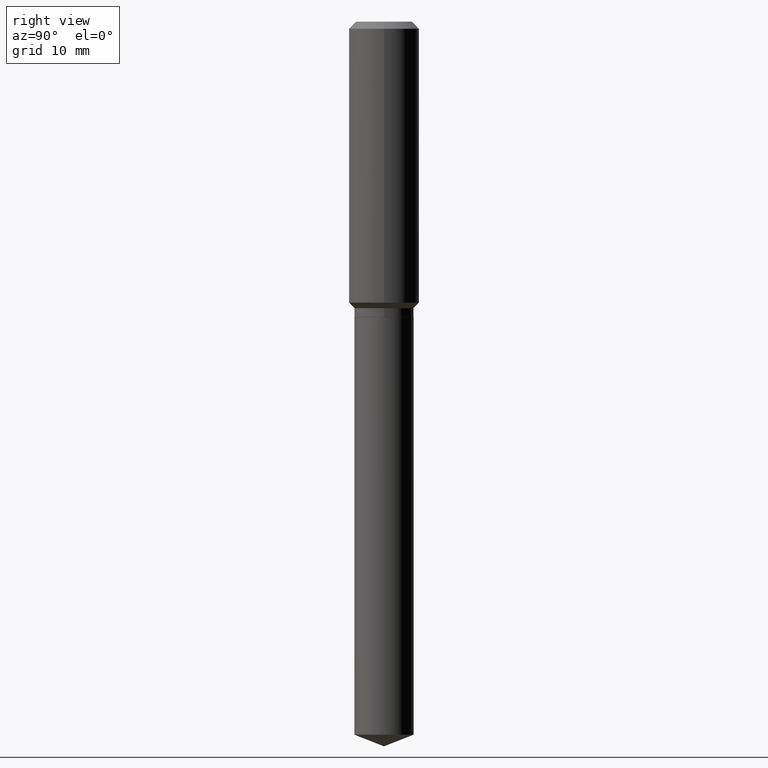
[diagram: clean part render]
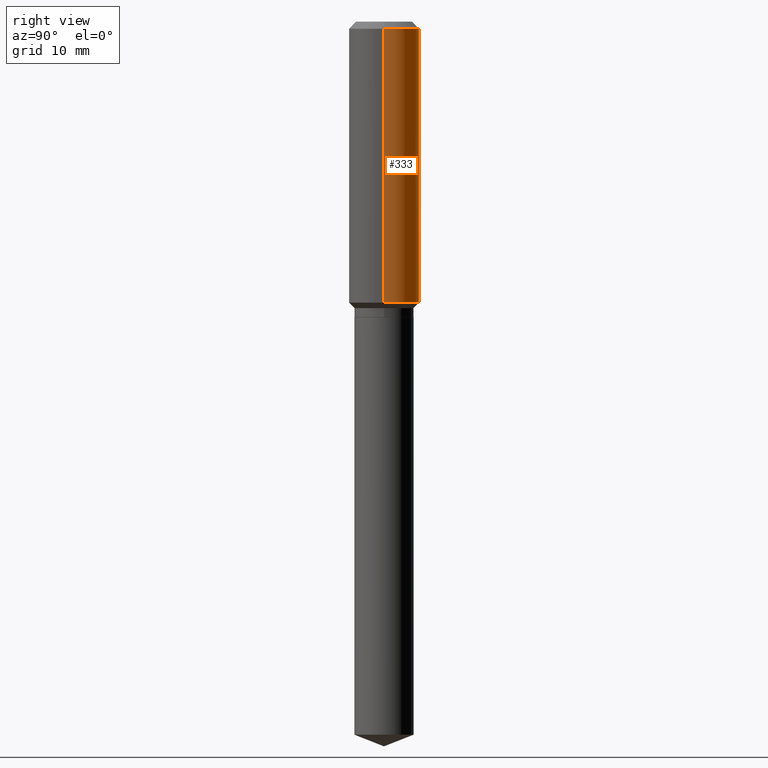
[diagram: same view with one face highlighted and labeled with its STEP entity id]
A machine part, right view. The second image highlights one B-rep face of the part: STEP entity #333.
In plain terms, the highlighted cylindrical surface (edge-blend (fillet) strip) has radius 5 mm, axis along (-0, 0, 1).
Its self-contained STEP definition (entity closure, byte-faithful):
#6 = EDGE_CURVE ( 'NONE', #180, #375, #241, .T. ) ;
#15 = CARTESIAN_POINT ( 'NONE',  ( 0.1968500000000002192, -6.864426886232561212E-15, -1.572349999999999692 ) ) ;
#33 = VECTOR ( 'NONE', #299, 39.37007874015748143 ) ;
#36 = LINE ( 'NONE', #189, #72 ) ;
#59 = DIRECTION ( 'NONE',  ( 1.000000000000000000, -6.982962677686266711E-15, 4.876176775795935793E-29 ) ) ;
#72 = VECTOR ( 'NONE', #191, 39.37007874015748143 ) ;
#84 = EDGE_CURVE ( 'NONE', #216, #375, #36, .T. ) ;
#89 = FACE_OUTER_BOUND ( 'NONE', #320, .T. ) ;
#93 = DIRECTION ( 'NONE',  ( -2.445468806185136597E-29, 3.491481338843145583E-15, 1.000000000000000000 ) ) ;
#100 = DIRECTION ( 'NONE',  ( 1.000000000000000000, -6.982962677686266711E-15, 0.000000000000000000 ) ) ;
#110 = AXIS2_PLACEMENT_3D ( 'NONE', #464, #93, #426 ) ;
#112 = EDGE_CURVE ( 'NONE', #279, #180, #457, .T. ) ;
#122 = DIRECTION ( 'NONE',  ( -2.445468806185136597E-29, 3.491481338843145583E-15, 1.000000000000000000 ) ) ;
#139 = ORIENTED_EDGE ( 'NONE', *, *, #6, .F. ) ;
#161 = CARTESIAN_POINT ( 'NONE',  ( -0.1968500000000000527, -1.414941776376378819E-15, -0.03937000000000027283 ) ) ;
#180 = VERTEX_POINT ( 'NONE', #296 ) ;
#189 = CARTESIAN_POINT ( 'NONE',  ( -0.1968500000000001082, 1.398703375343757985E-15, -9.682923725166787881E-30 ) ) ;
#191 = DIRECTION ( 'NONE',  ( -2.445468806185136877E-29, 3.491481338843145188E-15, 1.000000000000000000 ) ) ;
#216 = VERTEX_POINT ( 'NONE', #380 ) ;
#241 = CIRCLE ( 'NONE', #312, 0.1968500000000000527 ) ;
#279 = VERTEX_POINT ( 'NONE', #15 ) ;
#296 = CARTESIAN_POINT ( 'NONE',  ( 0.1968500000000000527, -1.512055823412797583E-15, -0.03937000000000027283 ) ) ;
#299 = DIRECTION ( 'NONE',  ( -2.445468806185136877E-29, 3.491481338843145188E-15, 1.000000000000000000 ) ) ;
#310 = CYLINDRICAL_SURFACE ( 'NONE', #340, 0.1968500000000001082 ) ;
#312 = AXIS2_PLACEMENT_3D ( 'NONE', #444, #364, #100 ) ;
#320 = EDGE_LOOP ( 'NONE', ( #433, #354, #139, #435 ) ) ;
#324 = CIRCLE ( 'NONE', #110, 0.1968500000000002192 ) ;
#333 = ADVANCED_FACE ( 'NONE', ( #89 ), #310, .T. ) ;
#337 = CARTESIAN_POINT ( 'NONE',  ( 0.1968500000000001082, -1.374596203102542397E-15, 9.598753983154305062E-30 ) ) ;
#340 = AXIS2_PLACEMENT_3D ( 'NONE', #400, #122, #59 ) ;
#354 = ORIENTED_EDGE ( 'NONE', *, *, #84, .T. ) ;
#364 = DIRECTION ( 'NONE',  ( -2.445468806185136597E-29, 3.491481338843145583E-15, 1.000000000000000000 ) ) ;
#375 = VERTEX_POINT ( 'NONE', #161 ) ;
#380 = CARTESIAN_POINT ( 'NONE',  ( -0.1968500000000002192, -4.091127307786260239E-15, -1.572349999999999692 ) ) ;
#400 = CARTESIAN_POINT ( 'NONE',  ( 0.000000000000000000, 0.000000000000000000, 0.000000000000000000 ) ) ;
#417 = EDGE_CURVE ( 'NONE', #279, #216, #324, .T. ) ;
#426 = DIRECTION ( 'NONE',  ( 1.000000000000000000, -6.982962677686265922E-15, 0.000000000000000000 ) ) ;
#433 = ORIENTED_EDGE ( 'NONE', *, *, #417, .T. ) ;
#435 = ORIENTED_EDGE ( 'NONE', *, *, #112, .F. ) ;
#444 = CARTESIAN_POINT ( 'NONE',  ( 9.627810689950950651E-31, -1.374596203102555808E-16, -0.03937000000000027283 ) ) ;
#457 = LINE ( 'NONE', #337, #33 ) ;
#464 = CARTESIAN_POINT ( 'NONE',  ( 3.845132877405198741E-29, -5.489830683130018815E-15, -1.572349999999999692 ) ) ;